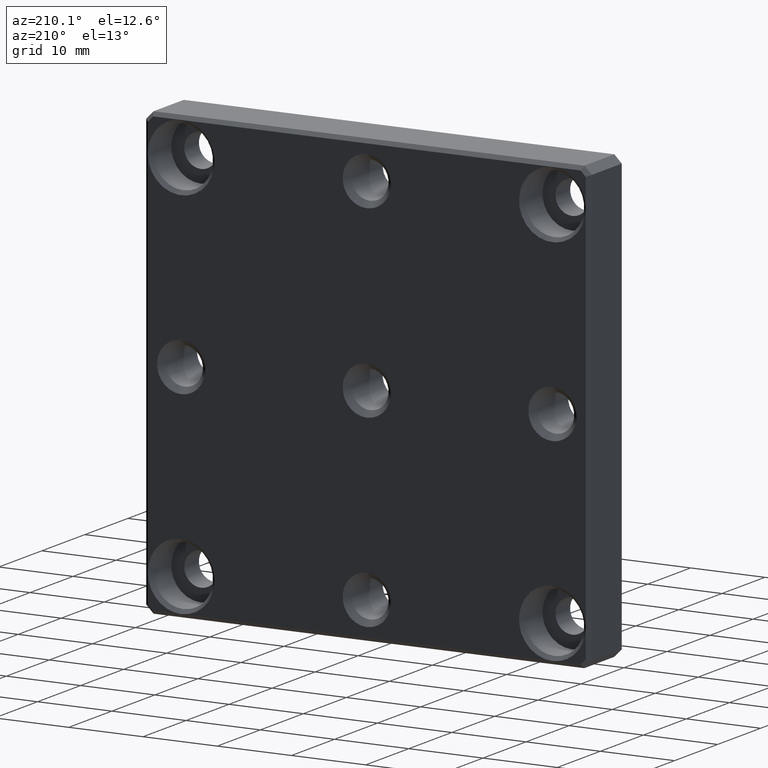
[diagram: clean part render]
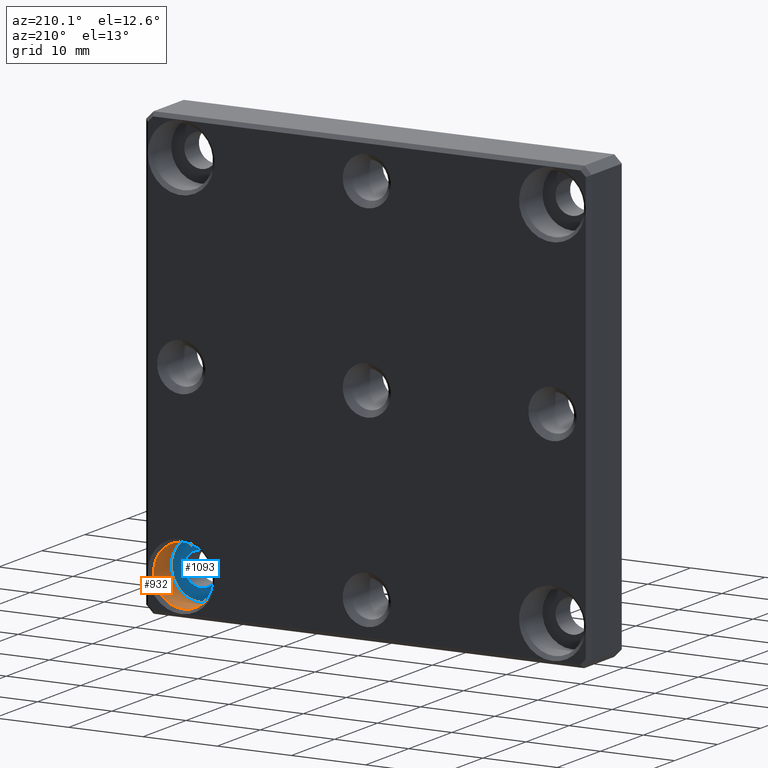
[diagram: same view with the hole feature highlighted: cylindrical wall and planar end face, labeled with their STEP entity ids]
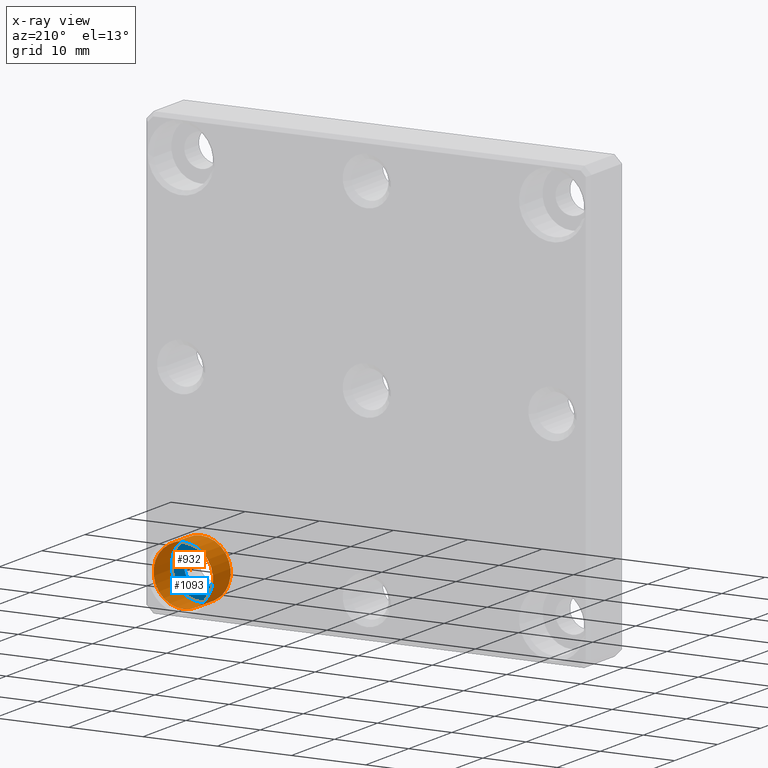
[diagram: x-ray of the same camera — body ghosted, the hole faces saturated]
A machine part, auxiliary view. The highlighted faces form one hole feature of diameter 8 mm: the cylindrical wall (entity #932, orange) and its adjacent planar end face (entity #1093, blue) — they share a circular edge in the B-rep.
The next image is the same camera in x-ray (body ghosted, the hole faces saturated) — the bore reads through the body.
Wall:
#26 = CARTESIAN_POINT ( 'NONE',  ( 24.99999999999999645, 8.000000000000000000, -25.00000000000000000 ) ) ;
#84 = VERTEX_POINT ( 'NONE', #1022 ) ;
#129 = CIRCLE ( 'NONE', #1302, 4.000000000000000000 ) ;
#205 = CARTESIAN_POINT ( 'NONE',  ( 24.99999999999999645, 3.400000000000000355, -21.00000000000000000 ) ) ;
#246 = DIRECTION ( 'NONE',  ( -0.000000000000000000, 1.000000000000000000, -0.000000000000000000 ) ) ;
#312 = ORIENTED_EDGE ( 'NONE', *, *, #1363, .T. ) ;
#316 = CIRCLE ( 'NONE', #1006, 4.000000000000000000 ) ;
#325 = EDGE_CURVE ( 'NONE', #1383, #1383, #129, .T. ) ;
#393 = FACE_OUTER_BOUND ( 'NONE', #776, .T. ) ;
#425 = CARTESIAN_POINT ( 'NONE',  ( 24.99999999999999645, 3.400000000000000355, -25.00000000000000000 ) ) ;
#483 = EDGE_LOOP ( 'NONE', ( #1138 ) ) ;
#485 = DIRECTION ( 'NONE',  ( 0.000000000000000000, 0.000000000000000000, 1.000000000000000000 ) ) ;
#708 = AXIS2_PLACEMENT_3D ( 'NONE', #26, #246, #485 ) ;
#776 = EDGE_LOOP ( 'NONE', ( #312 ) ) ;
#878 = DIRECTION ( 'NONE',  ( -0.000000000000000000, 1.000000000000000000, -0.000000000000000000 ) ) ;
#932 = ADVANCED_FACE ( 'NONE', ( #1064, #393 ), #1198, .F. ) ;
#1006 = AXIS2_PLACEMENT_3D ( 'NONE', #1329, #1071, #1319 ) ;
#1022 = CARTESIAN_POINT ( 'NONE',  ( 24.99999999999999645, 7.499999999999999112, -21.00000000000000000 ) ) ;
#1064 = FACE_OUTER_BOUND ( 'NONE', #483, .T. ) ;
#1071 = DIRECTION ( 'NONE',  ( -0.000000000000000000, 1.000000000000000000, -0.000000000000000000 ) ) ;
#1138 = ORIENTED_EDGE ( 'NONE', *, *, #325, .F. ) ;
#1198 = CYLINDRICAL_SURFACE ( 'NONE', #708, 4.000000000000000000 ) ;
#1302 = AXIS2_PLACEMENT_3D ( 'NONE', #425, #878, #1347 ) ;
#1319 = DIRECTION ( 'NONE',  ( 0.000000000000000000, 0.000000000000000000, 1.000000000000000000 ) ) ;
#1329 = CARTESIAN_POINT ( 'NONE',  ( 24.99999999999999645, 7.499999999999999112, -25.00000000000000000 ) ) ;
#1347 = DIRECTION ( 'NONE',  ( 0.000000000000000000, 0.000000000000000000, 1.000000000000000000 ) ) ;
#1363 = EDGE_CURVE ( 'NONE', #84, #84, #316, .T. ) ;
#1383 = VERTEX_POINT ( 'NONE', #205 ) ;
End face:
#73 = DIRECTION ( 'NONE',  ( -0.000000000000000000, 1.000000000000000000, -0.000000000000000000 ) ) ;
#102 = PLANE ( 'NONE',  #147 ) ;
#129 = CIRCLE ( 'NONE', #1302, 4.000000000000000000 ) ;
#147 = AXIS2_PLACEMENT_3D ( 'NONE', #445, #677, #207 ) ;
#189 = ORIENTED_EDGE ( 'NONE', *, *, #325, .T. ) ;
#191 = CIRCLE ( 'NONE', #1046, 2.249999999999998668 ) ;
#205 = CARTESIAN_POINT ( 'NONE',  ( 24.99999999999999645, 3.400000000000000355, -21.00000000000000000 ) ) ;
#207 = DIRECTION ( 'NONE',  ( 0.000000000000000000, -0.000000000000000000, -1.000000000000000000 ) ) ;
#261 = EDGE_CURVE ( 'NONE', #1039, #1039, #191, .T. ) ;
#325 = EDGE_CURVE ( 'NONE', #1383, #1383, #129, .T. ) ;
#425 = CARTESIAN_POINT ( 'NONE',  ( 24.99999999999999645, 3.400000000000000355, -25.00000000000000000 ) ) ;
#445 = CARTESIAN_POINT ( 'NONE',  ( 28.99999999999999645, 3.400000000000000355, -25.00000000000000000 ) ) ;
#548 = ORIENTED_EDGE ( 'NONE', *, *, #261, .F. ) ;
#677 = DIRECTION ( 'NONE',  ( 0.000000000000000000, -1.000000000000000000, 0.000000000000000000 ) ) ;
#683 = FACE_OUTER_BOUND ( 'NONE', #719, .T. ) ;
#719 = EDGE_LOOP ( 'NONE', ( #189 ) ) ;
#861 = EDGE_LOOP ( 'NONE', ( #548 ) ) ;
#878 = DIRECTION ( 'NONE',  ( -0.000000000000000000, 1.000000000000000000, -0.000000000000000000 ) ) ;
#893 = DIRECTION ( 'NONE',  ( 0.000000000000000000, 0.000000000000000000, 1.000000000000000000 ) ) ;
#1016 = CARTESIAN_POINT ( 'NONE',  ( 24.99999999999999645, 3.400000000000000355, -22.75000000000000355 ) ) ;
#1039 = VERTEX_POINT ( 'NONE', #1016 ) ;
#1046 = AXIS2_PLACEMENT_3D ( 'NONE', #1135, #73, #893 ) ;
#1093 = ADVANCED_FACE ( 'NONE', ( #1146, #683 ), #102, .F. ) ;
#1135 = CARTESIAN_POINT ( 'NONE',  ( 24.99999999999999645, 3.400000000000000355, -25.00000000000000000 ) ) ;
#1146 = FACE_BOUND ( 'NONE', #861, .T. ) ;
#1302 = AXIS2_PLACEMENT_3D ( 'NONE', #425, #878, #1347 ) ;
#1347 = DIRECTION ( 'NONE',  ( 0.000000000000000000, 0.000000000000000000, 1.000000000000000000 ) ) ;
#1383 = VERTEX_POINT ( 'NONE', #205 ) ;